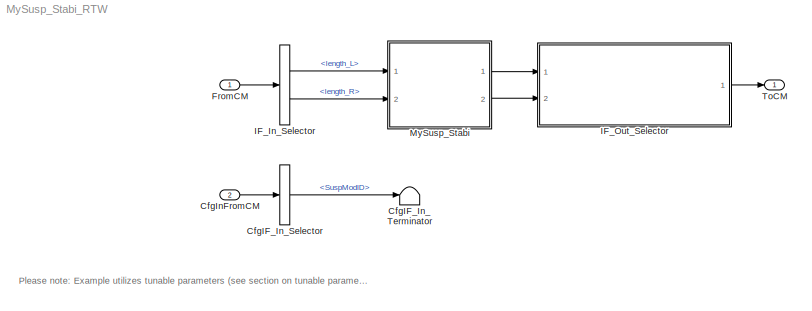
MODEL MySusp_Stabi_RTW
KIND model
CONFIG InitFcn = vehicle = 'Car'; if ~length(which('cmself')), cmenv; end\nMySusp_Stabi_RTW_bus
CONFIG PreLoadFcn = vehicle = 'Car'; if ~length(which('cmself')), cmenv; end\nMySusp_Stabi_RTW_bus\nMySusp_Stabi_RTW_params
BLOCK [BusSelector] CfgIF_In_Selector
  OutputAsBus = off
  OutputSignals = SuspModID
  Ports = [1, 1]
  SID = 9
BLOCK [Terminator] CfgIF_In_Terminator
  SID = 10
BLOCK [Inport] CfgInFromCM
  IconDisplay = Port number
  OutDataTypeStr = Bus: cmSusp_StabiCfgIn
  Port = 2
  SID = 8
BLOCK [Inport] FromCM
  IconDisplay = Port number
  OutDataTypeStr = Bus: cmSusp_StabiIn
  SID = 1
BLOCK [BusSelector] IF_In_Selector
  OutputAsBus = off
  OutputSignals = length_L,length_R
  Ports = [1, 2]
  SID = 2
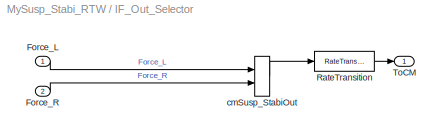
BLOCK [SubSystem] IF_Out_Selector
  OpenFcn = cmSignalSelect('SignalSelection_CB',gcb)
  Ports = [2, 1]
  RequestExecContextInheritance = off
  SID = 5
  UserData = DataTag0
  UserDataPersistent = on
BLOCK [Inport] IF_Out_Selector/Force_L
  IconDisplay = Port number
  SID = 14
BLOCK [Inport] IF_Out_Selector/Force_R
  IconDisplay = Port number
  Port = 2
  SID = 15
BLOCK [RateTransition] IF_Out_Selector/RateTransition
  OutPortSampleTime = str2num(get_param(bdroot,'FixedStep'))
  SID = 6
BLOCK [Outport] IF_Out_Selector/ToCM
  IconDisplay = Port number
  SID = 7
BLOCK [BusCreator] IF_Out_Selector/cmSusp_StabiOut
  InheritFromInputs = on
  Inputs = 2
  Ports = [2, 1]
  SID = 11
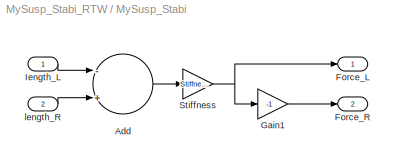
BLOCK [SubSystem] MySusp_Stabi
  Ports = [2, 2]
  RequestExecContextInheritance = off
  SID = 19
BLOCK [Sum] MySusp_Stabi/Add
  InputSameDT = off
  Inputs = -+
  OutDataTypeStr = Inherit: Inherit via internal rule
  Ports = [2, 1]
  SID = 16
  SaturateOnIntegerOverflow = off
BLOCK [Outport] MySusp_Stabi/Force_L
  IconDisplay = Port number
  SID = 22
BLOCK [Outport] MySusp_Stabi/Force_R
  IconDisplay = Port number
  Port = 2
  SID = 23
BLOCK [Gain] MySusp_Stabi/Gain1
  Gain = -1
  OutDataTypeStr = Inherit: Inherit via internal rule
  ParamDataTypeStr = Inherit: Inherit via internal rule
  SID = 18
  SaturateOnIntegerOverflow = off
BLOCK [Inport] MySusp_Stabi/Iength_L
  IconDisplay = Port number
  SID = 20
BLOCK [Gain] MySusp_Stabi/Stiffness
  Gain = Stiffness
  OutDataTypeStr = Inherit: Inherit via internal rule
  ParamDataTypeStr = Inherit: Inherit via internal rule
  SID = 17
  SaturateOnIntegerOverflow = off
BLOCK [Inport] MySusp_Stabi/length_R
  IconDisplay = Port number
  Port = 2
  SID = 21
BLOCK [Outport] ToCM
  IconDisplay = Port number
  OutDataTypeStr = Bus: cmSusp_StabiOut
  SID = 4
ANNOTATION (root): \n \n Please note: Example utilizes tunable parameters (see section on tunable parameters in the Programmers Guide). \n \n For user models of the class Susp_Stabi at least one modelclass-specific parameter (*.TimeInvariant) needs to be specified in the \n "Modelclass-specific Parameters" dialog of the CarMaker GUI.
LINE CfgIF_In_Selector:1 -> CfgIF_In_Terminator:1
LINE CfgInFromCM:1 -> CfgIF_In_Selector:1
LINE FromCM:1 -> IF_In_Selector:1
LINE IF_In_Selector:1 -> MySusp_Stabi:1
LINE IF_In_Selector:2 -> MySusp_Stabi:2
LINE IF_Out_Selector/Force_L:1 -> IF_Out_Selector/cmSusp_StabiOut:1
LINE IF_Out_Selector/Force_R:1 -> IF_Out_Selector/cmSusp_StabiOut:2
LINE IF_Out_Selector/RateTransition:1 -> IF_Out_Selector/ToCM:1
LINE IF_Out_Selector/cmSusp_StabiOut:1 -> IF_Out_Selector/RateTransition:1
LINE IF_Out_Selector:1 -> ToCM:1
LINE MySusp_Stabi/Add:1 -> MySusp_Stabi/Stiffness:1
LINE MySusp_Stabi/Gain1:1 -> MySusp_Stabi/Force_R:1
LINE MySusp_Stabi/Iength_L:1 -> MySusp_Stabi/Add:1
NET MySusp_Stabi/Stiffness:1 -> MySusp_Stabi/Force_L:1, MySusp_Stabi/Gain1:1
LINE MySusp_Stabi/length_R:1 -> MySusp_Stabi/Add:2
LINE MySusp_Stabi:1 -> IF_Out_Selector:1
LINE MySusp_Stabi:2 -> IF_Out_Selector:2
note: NET lines group one-source signal fan-out (src -> all destinations, sorted); 1:1 wires keep LINE
